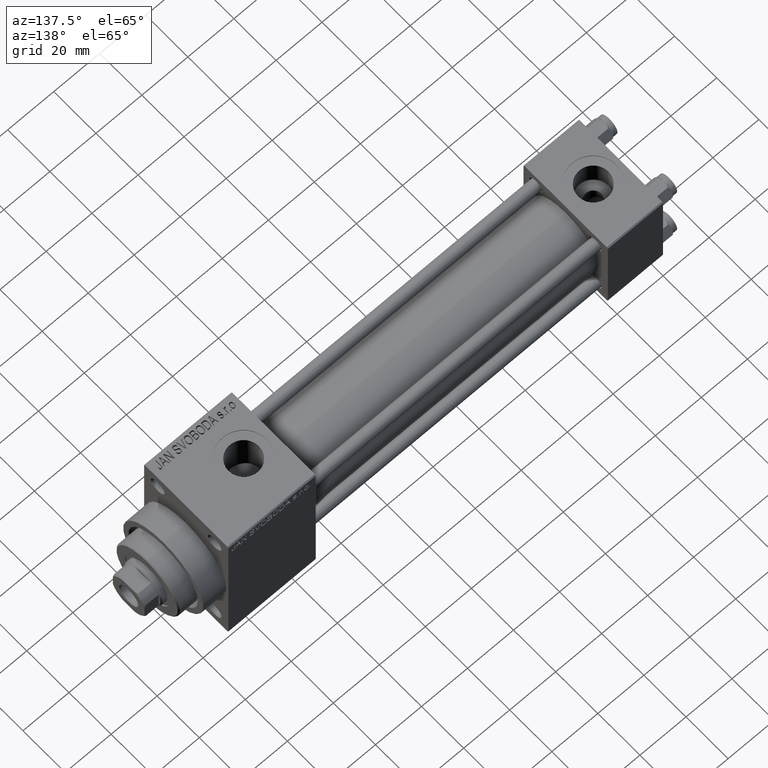
[diagram: clean part render]
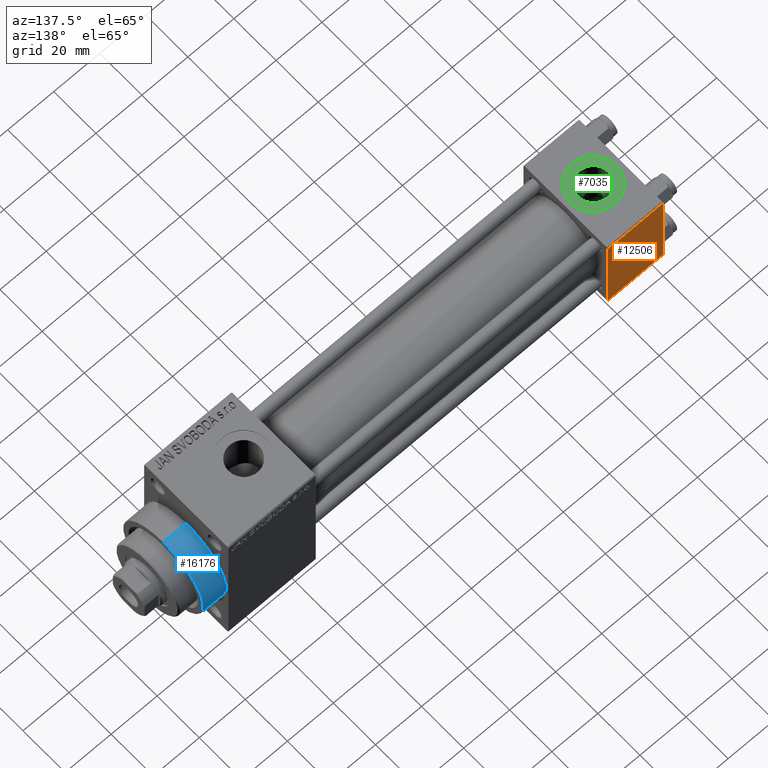
[diagram: same view with three faces highlighted in distinct colors, each labeled with its STEP entity id]
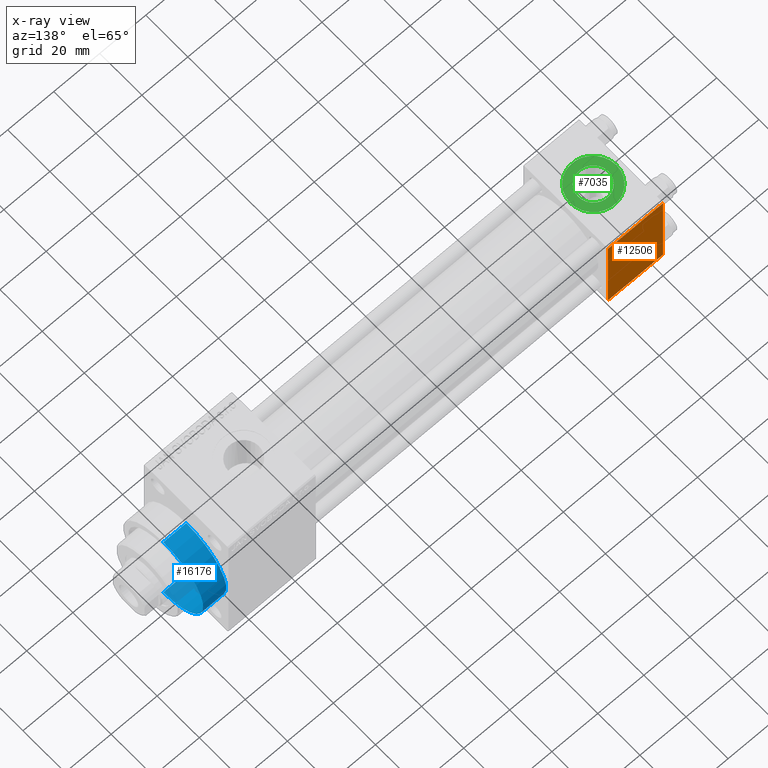
[diagram: x-ray of the same camera — body ghosted, the three highlighted faces saturated]
A machine part, auxiliary view with three faces highlighted in distinct colors.
The next image is the same camera in x-ray (body ghosted, the three faces saturated) — at least one of them is partly hidden behind the body in this view.
Their STEP definitions:

[orange] entity #12506 — the highlighted planar face has unit normal (0, 1, 0).
#551 = DIRECTION ( 'NONE',  ( -0.000000000000000000, 1.000000000000000000, 0.000000000000000000 ) ) ;
#1128 = VERTEX_POINT ( 'NONE', #29659 ) ;
#1152 = VERTEX_POINT ( 'NONE', #39434 ) ;
#3271 = VECTOR ( 'NONE', #28875, 1000.000000000000000 ) ;
#3905 = VERTEX_POINT ( 'NONE', #35643 ) ;
#5024 = DIRECTION ( 'NONE',  ( -1.000000000000000000, 0.000000000000000000, 0.000000000000000000 ) ) ;
#5115 = VERTEX_POINT ( 'NONE', #27526 ) ;
#5318 = EDGE_CURVE ( 'NONE', #1152, #3905, #46302, .T. ) ;
#6534 = CARTESIAN_POINT ( 'NONE',  ( 24.00000000000000000, 20.00000000000000000, 20.00000000000000000 ) ) ;
#8909 = ORIENTED_EDGE ( 'NONE', *, *, #41187, .T. ) ;
#9952 = DIRECTION ( 'NONE',  ( 1.000000000000000000, 0.000000000000000000, 0.000000000000000000 ) ) ;
#10812 = FACE_OUTER_BOUND ( 'NONE', #28730, .T. ) ;
#11008 = CARTESIAN_POINT ( 'NONE',  ( 0.000000000000000000, 20.00000000000000000, 20.00000000000000000 ) ) ;
#12506 = ADVANCED_FACE ( 'NONE', ( #10812 ), #33186, .T. ) ;
#13047 = CARTESIAN_POINT ( 'NONE',  ( 24.00000000000000000, 20.00000000000000000, 19.49999999999999289 ) ) ;
#13858 = EDGE_CURVE ( 'NONE', #3905, #1128, #30516, .T. ) ;
#19665 = AXIS2_PLACEMENT_3D ( 'NONE', #40352, #551, #25343 ) ;
#20575 = ORIENTED_EDGE ( 'NONE', *, *, #5318, .T. ) ;
#21062 = DIRECTION ( 'NONE',  ( 0.000000000000000000, 0.000000000000000000, -1.000000000000000000 ) ) ;
#21884 = ORIENTED_EDGE ( 'NONE', *, *, #13858, .T. ) ;
#25032 = VECTOR ( 'NONE', #5024, 1000.000000000000000 ) ;
#25107 = VECTOR ( 'NONE', #9952, 1000.000000000000000 ) ;
#25343 = DIRECTION ( 'NONE',  ( 0.000000000000000000, -0.000000000000000000, 1.000000000000000000 ) ) ;
#27526 = CARTESIAN_POINT ( 'NONE',  ( 0.000000000000000000, 20.00000000000000000, 19.49999999999999289 ) ) ;
#27789 = EDGE_CURVE ( 'NONE', #5115, #1128, #46490, .T. ) ;
#28730 = EDGE_LOOP ( 'NONE', ( #20575, #21884, #33293, #8909 ) ) ;
#28875 = DIRECTION ( 'NONE',  ( 0.000000000000000000, 0.000000000000000000, -1.000000000000000000 ) ) ;
#29659 = CARTESIAN_POINT ( 'NONE',  ( 0.000000000000000000, 20.00000000000000000, -19.50000000000002132 ) ) ;
#30516 = LINE ( 'NONE', #45485, #25032 ) ;
#33186 = PLANE ( 'NONE',  #19665 ) ;
#33293 = ORIENTED_EDGE ( 'NONE', *, *, #27789, .F. ) ;
#35643 = CARTESIAN_POINT ( 'NONE',  ( 24.00000000000000000, 20.00000000000000000, -19.50000000000002132 ) ) ;
#39434 = CARTESIAN_POINT ( 'NONE',  ( 24.00000000000000000, 20.00000000000000000, 19.49999999999999289 ) ) ;
#40352 = CARTESIAN_POINT ( 'NONE',  ( 24.00000000000000000, 20.00000000000000000, 20.00000000000000000 ) ) ;
#40865 = VECTOR ( 'NONE', #21062, 1000.000000000000000 ) ;
#41187 = EDGE_CURVE ( 'NONE', #5115, #1152, #42107, .T. ) ;
#42107 = LINE ( 'NONE', #13047, #25107 ) ;
#45485 = CARTESIAN_POINT ( 'NONE',  ( 24.00000000000000000, 20.00000000000000000, -19.50000000000002132 ) ) ;
#46302 = LINE ( 'NONE', #6534, #40865 ) ;
#46490 = LINE ( 'NONE', #11008, #3271 ) ;

[blue] entity #16176 — the highlighted cylindrical surface (partial cylindrical patch) has radius 19 mm, axis along (-1, -0, -0).
#2875 = VERTEX_POINT ( 'NONE', #22402 ) ;
#3821 = DIRECTION ( 'NONE',  ( 0.000000000000000000, 0.000000000000000000, -1.000000000000000000 ) ) ;
#3897 = ORIENTED_EDGE ( 'NONE', *, *, #18140, .T. ) ;
#7741 = DIRECTION ( 'NONE',  ( 1.000000000000000000, 0.000000000000000000, 0.000000000000000000 ) ) ;
#9561 = CARTESIAN_POINT ( 'NONE',  ( 199.0000000000000000, 2.326828918379970970E-15, -19.00000000000000000 ) ) ;
#10480 = DIRECTION ( 'NONE',  ( -1.000000000000000000, -0.000000000000000000, -0.000000000000000000 ) ) ;
#11078 = ORIENTED_EDGE ( 'NONE', *, *, #32512, .F. ) ;
#12823 = EDGE_CURVE ( 'NONE', #38925, #31944, #14080, .T. ) ;
#12836 = VERTEX_POINT ( 'NONE', #25046 ) ;
#14080 = LINE ( 'NONE', #43375, #18922 ) ;
#16176 = ADVANCED_FACE ( 'NONE', ( #38376 ), #46195, .T. ) ;
#17397 = DIRECTION ( 'NONE',  ( 1.000000000000000000, 0.000000000000000000, 0.000000000000000000 ) ) ;
#18140 = EDGE_CURVE ( 'NONE', #31944, #2875, #33512, .T. ) ;
#18349 = CARTESIAN_POINT ( 'NONE',  ( 199.0000000000000000, 0.000000000000000000, 19.00000000000000000 ) ) ;
#18612 = ORIENTED_EDGE ( 'NONE', *, *, #32566, .F. ) ;
#18719 = VECTOR ( 'NONE', #39552, 1000.000000000000000 ) ;
#18922 = VECTOR ( 'NONE', #43610, 1000.000000000000000 ) ;
#20261 = DIRECTION ( 'NONE',  ( 0.000000000000000000, 0.000000000000000000, 1.000000000000000000 ) ) ;
#22268 = DIRECTION ( 'NONE',  ( 0.000000000000000000, 0.000000000000000000, -1.000000000000000000 ) ) ;
#22402 = CARTESIAN_POINT ( 'NONE',  ( 189.0000000000000000, 0.000000000000000000, 19.00000000000000000 ) ) ;
#23607 = AXIS2_PLACEMENT_3D ( 'NONE', #42640, #10480, #20261 ) ;
#25046 = CARTESIAN_POINT ( 'NONE',  ( 199.0000000000000000, 0.000000000000000000, 19.00000000000000000 ) ) ;
#25143 = AXIS2_PLACEMENT_3D ( 'NONE', #45098, #7741, #22268 ) ;
#28603 = CIRCLE ( 'NONE', #30890, 19.00000000000000000 ) ;
#30890 = AXIS2_PLACEMENT_3D ( 'NONE', #43346, #17397, #3821 ) ;
#31944 = VERTEX_POINT ( 'NONE', #39964 ) ;
#32268 = ORIENTED_EDGE ( 'NONE', *, *, #12823, .T. ) ;
#32512 = EDGE_CURVE ( 'NONE', #12836, #2875, #39793, .T. ) ;
#32566 = EDGE_CURVE ( 'NONE', #38925, #12836, #28603, .T. ) ;
#33512 = CIRCLE ( 'NONE', #25143, 19.00000000000000000 ) ;
#38376 = FACE_OUTER_BOUND ( 'NONE', #41841, .T. ) ;
#38925 = VERTEX_POINT ( 'NONE', #9561 ) ;
#39552 = DIRECTION ( 'NONE',  ( -1.000000000000000000, -0.000000000000000000, -0.000000000000000000 ) ) ;
#39793 = LINE ( 'NONE', #18349, #18719 ) ;
#39964 = CARTESIAN_POINT ( 'NONE',  ( 189.0000000000000000, 2.326828918379970970E-15, -19.00000000000000000 ) ) ;
#41841 = EDGE_LOOP ( 'NONE', ( #18612, #32268, #3897, #11078 ) ) ;
#42640 = CARTESIAN_POINT ( 'NONE',  ( 199.0000000000000000, 0.000000000000000000, 0.000000000000000000 ) ) ;
#43346 = CARTESIAN_POINT ( 'NONE',  ( 199.0000000000000000, 0.000000000000000000, 0.000000000000000000 ) ) ;
#43375 = CARTESIAN_POINT ( 'NONE',  ( 199.0000000000000000, 2.326828918379970970E-15, -19.00000000000000000 ) ) ;
#43610 = DIRECTION ( 'NONE',  ( -1.000000000000000000, -0.000000000000000000, -0.000000000000000000 ) ) ;
#45098 = CARTESIAN_POINT ( 'NONE',  ( 189.0000000000000000, 0.000000000000000000, 0.000000000000000000 ) ) ;
#46195 = CYLINDRICAL_SURFACE ( 'NONE', #23607, 19.00000000000000000 ) ;

[green] entity #7035 — the highlighted planar face has unit normal (0, 0, 1).
#208 = VERTEX_POINT ( 'NONE', #5820 ) ;
#1336 = CARTESIAN_POINT ( 'NONE',  ( 12.00000000000000000, 1.540743955509788682E-30, 19.79999999999999716 ) ) ;
#1677 = CIRCLE ( 'NONE', #22972, 6.579999999999999183 ) ;
#2509 = CARTESIAN_POINT ( 'NONE',  ( 12.00000000000000000, 1.540743955509788682E-30, 19.79999999999999716 ) ) ;
#4444 = DIRECTION ( 'NONE',  ( 1.000000000000000000, 0.000000000000000000, 0.000000000000000000 ) ) ;
#5484 = DIRECTION ( 'NONE',  ( 0.000000000000000000, 0.000000000000000000, 1.000000000000000000 ) ) ;
#5820 = CARTESIAN_POINT ( 'NONE',  ( 18.57999999999999829, 1.540743955509788682E-30, 19.79999999999999716 ) ) ;
#6827 = EDGE_LOOP ( 'NONE', ( #23375, #39510 ) ) ;
#6985 = CIRCLE ( 'NONE', #20649, 6.579999999999999183 ) ;
#7035 = ADVANCED_FACE ( 'NONE', ( #9291, #41914 ), #23812, .T. ) ;
#9291 = FACE_BOUND ( 'NONE', #10429, .T. ) ;
#10160 = ORIENTED_EDGE ( 'NONE', *, *, #19913, .F. ) ;
#10429 = EDGE_LOOP ( 'NONE', ( #10160, #23268 ) ) ;
#11986 = AXIS2_PLACEMENT_3D ( 'NONE', #26917, #5484, #20002 ) ;
#12138 = CIRCLE ( 'NONE', #27383, 9.999999999999998224 ) ;
#14116 = CARTESIAN_POINT ( 'NONE',  ( 12.00000000000000000, 1.540743955509788682E-30, 19.79999999999999716 ) ) ;
#15957 = CARTESIAN_POINT ( 'NONE',  ( 22.00000000000000000, 1.540743955509788682E-30, 19.79999999999999716 ) ) ;
#19435 = DIRECTION ( 'NONE',  ( 0.000000000000000000, 0.000000000000000000, 1.000000000000000000 ) ) ;
#19913 = EDGE_CURVE ( 'NONE', #208, #45408, #6985, .T. ) ;
#20002 = DIRECTION ( 'NONE',  ( 1.000000000000000000, 0.000000000000000000, -0.000000000000000000 ) ) ;
#20649 = AXIS2_PLACEMENT_3D ( 'NONE', #14116, #31684, #46664 ) ;
#20779 = EDGE_CURVE ( 'NONE', #45408, #208, #1677, .T. ) ;
#21741 = AXIS2_PLACEMENT_3D ( 'NONE', #41476, #44568, #26009 ) ;
#22404 = CARTESIAN_POINT ( 'NONE',  ( 5.420000000000000817, 8.058175938389596335E-16, 19.79999999999999716 ) ) ;
#22972 = AXIS2_PLACEMENT_3D ( 'NONE', #2509, #24174, #23710 ) ;
#23268 = ORIENTED_EDGE ( 'NONE', *, *, #20779, .F. ) ;
#23375 = ORIENTED_EDGE ( 'NONE', *, *, #44492, .T. ) ;
#23710 = DIRECTION ( 'NONE',  ( 1.000000000000000000, 0.000000000000000000, 0.000000000000000000 ) ) ;
#23812 = PLANE ( 'NONE',  #11986 ) ;
#24174 = DIRECTION ( 'NONE',  ( 0.000000000000000000, 0.000000000000000000, 1.000000000000000000 ) ) ;
#26009 = DIRECTION ( 'NONE',  ( 1.000000000000000000, 0.000000000000000000, 0.000000000000000000 ) ) ;
#26917 = CARTESIAN_POINT ( 'NONE',  ( 12.00000000000000000, 1.540743955509788682E-30, 19.79999999999999716 ) ) ;
#27383 = AXIS2_PLACEMENT_3D ( 'NONE', #1336, #19435, #4444 ) ;
#30113 = CIRCLE ( 'NONE', #21741, 9.999999999999998224 ) ;
#31618 = EDGE_CURVE ( 'NONE', #46311, #45569, #30113, .T. ) ;
#31684 = DIRECTION ( 'NONE',  ( 0.000000000000000000, 0.000000000000000000, 1.000000000000000000 ) ) ;
#39510 = ORIENTED_EDGE ( 'NONE', *, *, #31618, .T. ) ;
#41349 = CARTESIAN_POINT ( 'NONE',  ( 2.000000000000003553, 1.224646799147354440E-15, 19.79999999999999716 ) ) ;
#41476 = CARTESIAN_POINT ( 'NONE',  ( 12.00000000000000000, 1.540743955509788682E-30, 19.79999999999999716 ) ) ;
#41914 = FACE_OUTER_BOUND ( 'NONE', #6827, .T. ) ;
#44492 = EDGE_CURVE ( 'NONE', #45569, #46311, #12138, .T. ) ;
#44568 = DIRECTION ( 'NONE',  ( 0.000000000000000000, 0.000000000000000000, 1.000000000000000000 ) ) ;
#45408 = VERTEX_POINT ( 'NONE', #22404 ) ;
#45569 = VERTEX_POINT ( 'NONE', #15957 ) ;
#46311 = VERTEX_POINT ( 'NONE', #41349 ) ;
#46664 = DIRECTION ( 'NONE',  ( 1.000000000000000000, 0.000000000000000000, 0.000000000000000000 ) ) ;